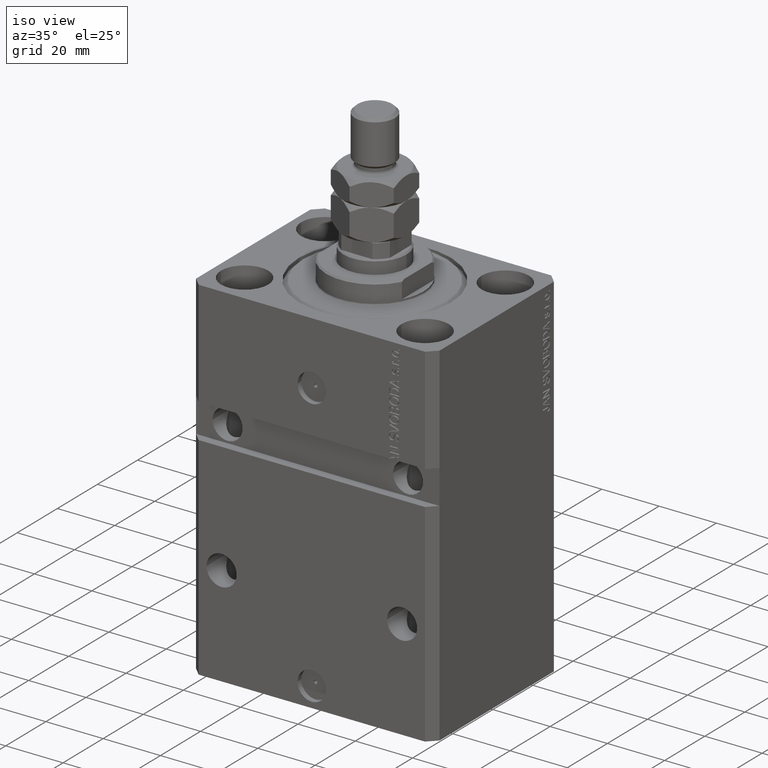
[diagram: clean part render]
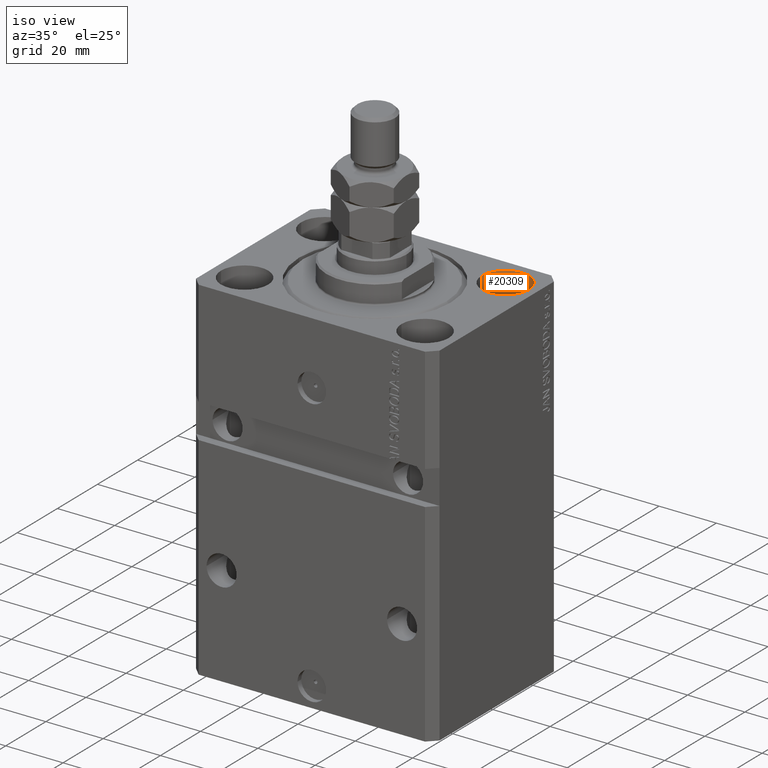
[diagram: same view with one face highlighted and labeled with its STEP entity id]
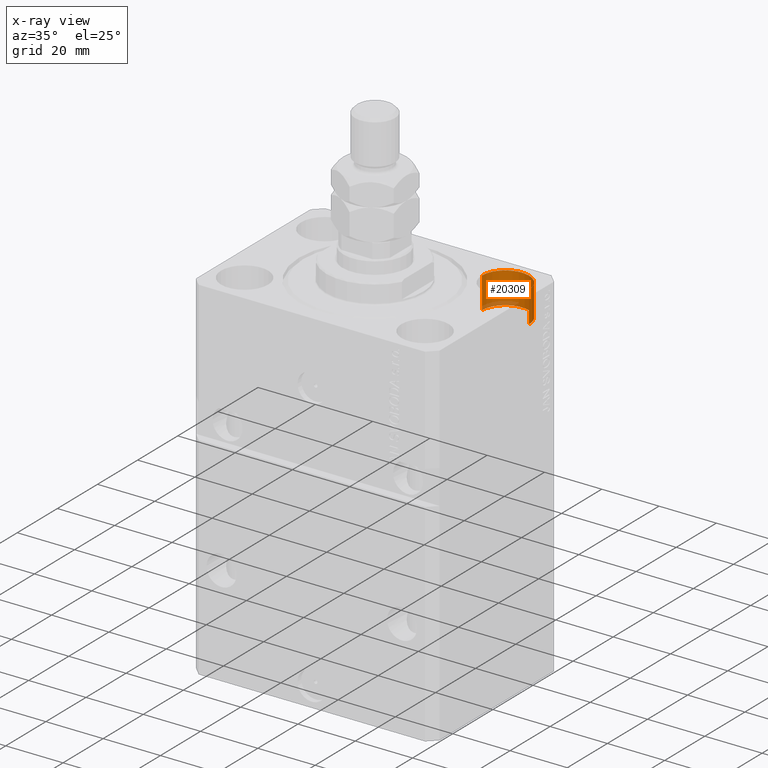
[diagram: x-ray of the same camera — body ghosted, the highlighted face saturated]
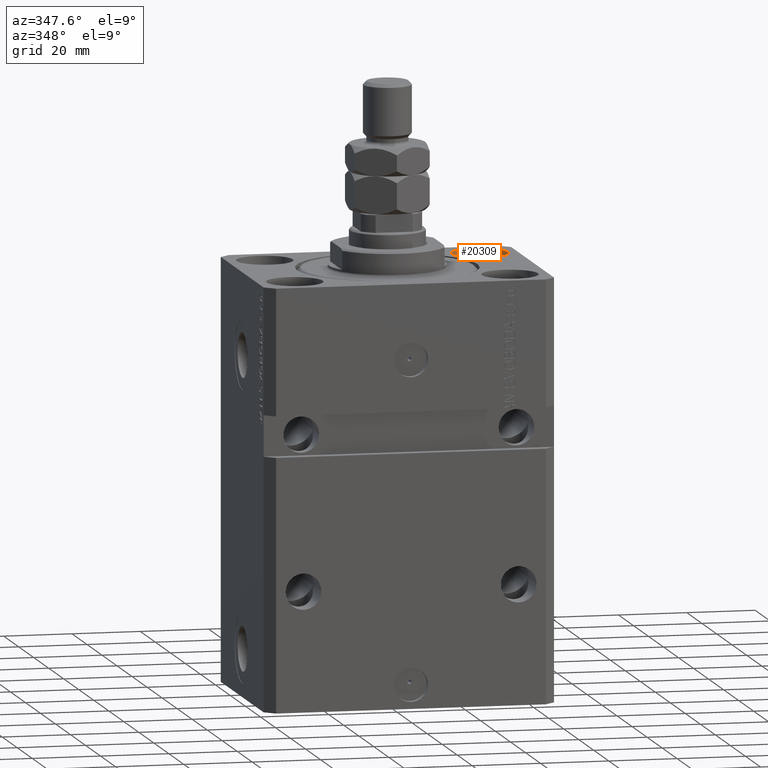
[diagram: same view with one face highlighted and labeled with its STEP entity id]
A machine part, iso view. The second image highlights one B-rep face of the part: STEP entity #20309.
The next image is the same camera in x-ray: the body ghosted, the highlighted face saturated — about 8% of this face is hidden behind the body in this view.
A second angle (auxiliary view) of the same face is appended — the face is thin or edge-on in the first view.
In plain terms, the highlighted cylindrical surface (edge-blend (fillet) strip) has radius 8.25 mm, axis along (0, 0, 1).
Its self-contained STEP definition (entity closure, byte-faithful):
#770 = EDGE_CURVE ( 'NONE', #43914, #28149, #48150, .T. ) ;
#1844 = AXIS2_PLACEMENT_3D ( 'NONE', #41596, #13756, #9989 ) ;
#1896 = CARTESIAN_POINT ( 'NONE',  ( 23.25000000000000355, 20.00000000000001066, -11.00000000000000000 ) ) ;
#3357 = DIRECTION ( 'NONE',  ( 1.000000000000000000, 0.000000000000000000, 0.000000000000000000 ) ) ;
#3428 = CYLINDRICAL_SURFACE ( 'NONE', #1844, 8.249999999999992895 ) ;
#4268 = CIRCLE ( 'NONE', #42770, 8.249999999999992895 ) ;
#4509 = DIRECTION ( 'NONE',  ( 0.000000000000000000, 0.000000000000000000, 1.000000000000000000 ) ) ;
#4756 = CARTESIAN_POINT ( 'NONE',  ( 39.74999999999999289, 20.00000000000001066, -11.00000000000000000 ) ) ;
#6668 = EDGE_LOOP ( 'NONE', ( #31022, #44902, #48424, #27273 ) ) ;
#8532 = LINE ( 'NONE', #4756, #21229 ) ;
#8840 = EDGE_CURVE ( 'NONE', #28149, #37920, #21424, .T. ) ;
#9989 = DIRECTION ( 'NONE',  ( 1.000000000000000000, 0.000000000000000000, 0.000000000000000000 ) ) ;
#11627 = CARTESIAN_POINT ( 'NONE',  ( 23.25000000000000355, 20.00000000000001066, 0.000000000000000000 ) ) ;
#13756 = DIRECTION ( 'NONE',  ( -0.000000000000000000, -0.000000000000000000, 1.000000000000000000 ) ) ;
#16093 = DIRECTION ( 'NONE',  ( -0.000000000000000000, -0.000000000000000000, 1.000000000000000000 ) ) ;
#17016 = EDGE_CURVE ( 'NONE', #33486, #37920, #4268, .T. ) ;
#18651 = CARTESIAN_POINT ( 'NONE',  ( 23.25000000000000355, 20.00000000000001066, -11.00000000000000000 ) ) ;
#20309 = ADVANCED_FACE ( 'NONE', ( #33825 ), #3428, .F. ) ;
#20331 = CARTESIAN_POINT ( 'NONE',  ( 31.50000000000000000, 20.00000000000001066, 0.000000000000000000 ) ) ;
#21229 = VECTOR ( 'NONE', #16093, 1000.000000000000000 ) ;
#21424 = LINE ( 'NONE', #18651, #29880 ) ;
#22451 = CARTESIAN_POINT ( 'NONE',  ( 31.50000000000000000, 20.00000000000001066, -11.00000000000000000 ) ) ;
#23825 = EDGE_CURVE ( 'NONE', #43914, #33486, #8532, .T. ) ;
#25103 = CARTESIAN_POINT ( 'NONE',  ( 39.74999999999999289, 20.00000000000001066, -11.00000000000000000 ) ) ;
#27273 = ORIENTED_EDGE ( 'NONE', *, *, #17016, .T. ) ;
#27858 = DIRECTION ( 'NONE',  ( 1.000000000000000000, 0.000000000000000000, 0.000000000000000000 ) ) ;
#28149 = VERTEX_POINT ( 'NONE', #1896 ) ;
#29880 = VECTOR ( 'NONE', #48270, 1000.000000000000000 ) ;
#31022 = ORIENTED_EDGE ( 'NONE', *, *, #8840, .F. ) ;
#33486 = VERTEX_POINT ( 'NONE', #46992 ) ;
#33825 = FACE_OUTER_BOUND ( 'NONE', #6668, .T. ) ;
#34507 = AXIS2_PLACEMENT_3D ( 'NONE', #22451, #37760, #3357 ) ;
#37760 = DIRECTION ( 'NONE',  ( 0.000000000000000000, 0.000000000000000000, 1.000000000000000000 ) ) ;
#37920 = VERTEX_POINT ( 'NONE', #11627 ) ;
#41596 = CARTESIAN_POINT ( 'NONE',  ( 31.50000000000000000, 20.00000000000001066, -11.00000000000000000 ) ) ;
#42770 = AXIS2_PLACEMENT_3D ( 'NONE', #20331, #4509, #27858 ) ;
#43914 = VERTEX_POINT ( 'NONE', #25103 ) ;
#44902 = ORIENTED_EDGE ( 'NONE', *, *, #770, .F. ) ;
#46992 = CARTESIAN_POINT ( 'NONE',  ( 39.74999999999999289, 20.00000000000001066, 0.000000000000000000 ) ) ;
#48150 = CIRCLE ( 'NONE', #34507, 8.249999999999992895 ) ;
#48270 = DIRECTION ( 'NONE',  ( -0.000000000000000000, -0.000000000000000000, 1.000000000000000000 ) ) ;
#48424 = ORIENTED_EDGE ( 'NONE', *, *, #23825, .T. ) ;